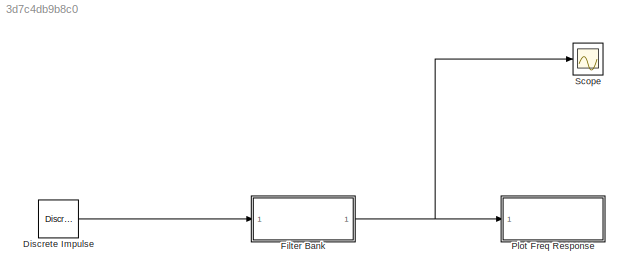
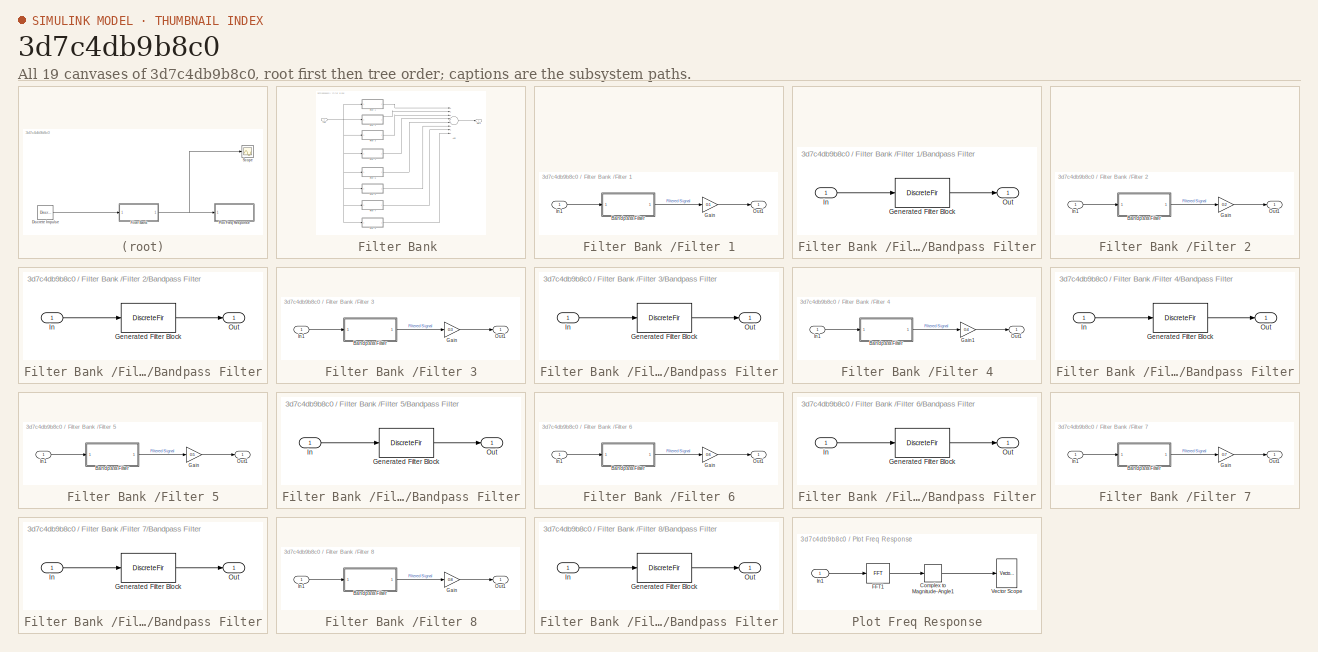
[diagram: thumbnail index - all 19 canvases of the model, root first then tree order]
MODEL slx_3d7c4db9b8c0
KIND model
CONFIG AbsTol = auto
CONFIG EnableMultiTasking = off
CONFIG FixedStep = auto
CONFIG MaxStep = auto
CONFIG MinStep = auto
CONFIG RelTol = 1e-3
CONFIG SampleTimeConstraint = Unconstrained
CONFIG Solver = VariableStepAuto
CONFIG SolverName = VariableStepAuto
CONFIG StartTime = 0.0
CONFIG StopTime = 0.1
BLOCK [Reference] Discrete Impulse  REF=dspsrcs4/Discrete 
Impulse
  Ports = [0, 1]
  SourceBlock = dspsrcs4/Discrete \nImpulse
  SourceProductBaseCode = DS
  SourceProductName = DSP System Toolbox
  SourceType = Discrete Impulse
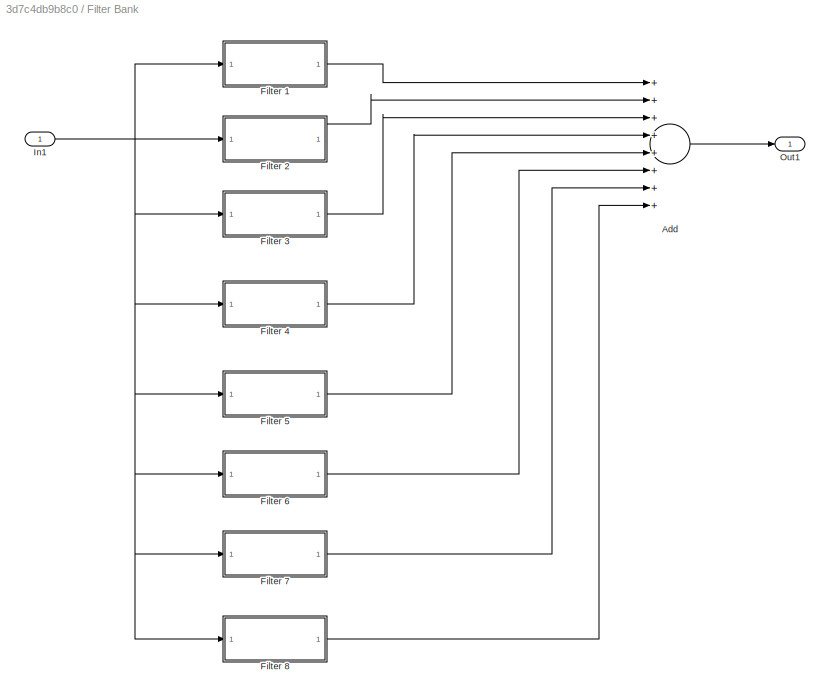
BLOCK [SubSystem] Filter Bank 
  Ports = [1, 1]
  RequestExecContextInheritance = off
BLOCK [Sum] Filter Bank /Add
  InputSameDT = off
  Inputs = ++++++++
  OutDataTypeStr = Inherit: Inherit via internal rule
  Ports = [8, 1]
  SaturateOnIntegerOverflow = off
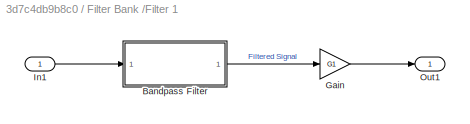
BLOCK [SubSystem] Filter Bank /Filter 1
  Ports = [1, 1]
  RequestExecContextInheritance = off
BLOCK [SubSystem] Filter Bank /Filter 1/Bandpass Filter
  CopyFcn = fdesignblkfcn(gcbh, {'CopyFcn'});
  DialogController = fdesignblkfcn
  InitFcn = fdesignblkfcn(gcbh, {'InitFcn'});
  Ports = [1, 1]
  RequestExecContextInheritance = off
  UserDataPersistent = on
BLOCK [DiscreteFir] Filter Bank /Filter 1/Bandpass Filter/Generated Filter Block
  Coefficients = [-0.00766321048125649575 -0.000180280651799153227 -0.000182785610599459888 -0.000184443947717255431 -0.000186875509306509973 -0.000188447846206871888 -0.000190806976946802253 -0.000192297232951844953 -0.000194601991788270897 -0.00019601436629961916 -0.000198275924662991339 -0.000199627261288770776 -0.000201883607460546632 -0.000203184800043465665 -0.000205446856650040425 -0.00020671435309735123 -0...<+32182ch>
  InputPortMap = u0
  InputProcessing = Columns as channels (frame based)
  OutputPortMap = o0
  Ports = [1, 1]
  Tag = BlockMethodSubSystem
BLOCK [Inport] Filter Bank /Filter 1/Bandpass Filter/In
  IconDisplay = Port number
BLOCK [Outport] Filter Bank /Filter 1/Bandpass Filter/Out
  IconDisplay = Port number
BLOCK [Gain] Filter Bank /Filter 1/Gain
  Gain = G1
  OutDataTypeStr = Inherit: Inherit via internal rule
  ParamDataTypeStr = Inherit: Inherit via internal rule
  SaturateOnIntegerOverflow = off
BLOCK [Inport] Filter Bank /Filter 1/In1
  IconDisplay = Port number
BLOCK [Outport] Filter Bank /Filter 1/Out1
  IconDisplay = Port number
BLOCK [SubSystem] Filter Bank /Filter 2
  Ports = [1, 1]
  RequestExecContextInheritance = off
BLOCK [SubSystem] Filter Bank /Filter 2/Bandpass Filter
  CopyFcn = fdesignblkfcn(gcbh, {'CopyFcn'});
  DialogController = fdesignblkfcn
  InitFcn = fdesignblkfcn(gcbh, {'InitFcn'});
  Ports = [1, 1]
  RequestExecContextInheritance = off
  UserDataPersistent = on
BLOCK [DiscreteFir] Filter Bank /Filter 2/Bandpass Filter/Generated Filter Block
  Coefficients = [-0.00683808473801020538 0.000453146012099650791 0.000439193334597743983 0.000425688735826898403 0.000413372222263871545 0.00040142288334680062 0.00039058929220634847 0.00038004506436549782 0.000370562120820603529 0.000361285945627898774 0.000353023210082561154 0.000344891623023386355 0.000337733977270703381 0.000330627325545598729 0.000324469668998443855 0.00031828100727470792 0.00031302645003936...<+45100ch>
  InputPortMap = u0
  InputProcessing = Columns as channels (frame based)
  OutputPortMap = o0
  Ports = [1, 1]
  Tag = BlockMethodSubSystem
BLOCK [Inport] Filter Bank /Filter 2/Bandpass Filter/In
  IconDisplay = Port number
BLOCK [Outport] Filter Bank /Filter 2/Bandpass Filter/Out
  IconDisplay = Port number
BLOCK [Gain] Filter Bank /Filter 2/Gain
  Gain = G2
  OutDataTypeStr = Inherit: Inherit via internal rule
  ParamDataTypeStr = Inherit: Inherit via internal rule
  SaturateOnIntegerOverflow = off
BLOCK [Inport] Filter Bank /Filter 2/In1
  IconDisplay = Port number
BLOCK [Outport] Filter Bank /Filter 2/Out1
  IconDisplay = Port number
BLOCK [SubSystem] Filter Bank /Filter 3
  Ports = [1, 1]
  RequestExecContextInheritance = off
BLOCK [SubSystem] Filter Bank /Filter 3/Bandpass Filter
  CopyFcn = fdesignblkfcn(gcbh, {'CopyFcn'});
  DialogController = fdesignblkfcn
  InitFcn = fdesignblkfcn(gcbh, {'InitFcn'});
  Ports = [1, 1]
  RequestExecContextInheritance = off
  UserDataPersistent = on
BLOCK [DiscreteFir] Filter Bank /Filter 3/Bandpass Filter/Generated Filter Block
  Coefficients = [0.000737724855567226264 -7.12621892387676527e-06 -7.10562199524401881e-06 -7.16452421808979412e-06 -7.19265580841319323e-06 -7.29714819573407221e-06 -7.3647135625338432e-06 -7.50199069266997175e-06 -7.59245959456994677e-06 -7.74526175817579297e-06 -7.83946792756576156e-06 -7.98691821420385704e-06 -8.06050340438970738e-06 -8.17689272316811357e-06 -8.20211017609812566e-06 -8.25959963603597479e-06 -...<+31187ch>
  InputPortMap = u0
  InputProcessing = Columns as channels (frame based)
  OutputPortMap = o0
  Ports = [1, 1]
  Tag = BlockMethodSubSystem
BLOCK [Inport] Filter Bank /Filter 3/Bandpass Filter/In
  IconDisplay = Port number
BLOCK [Outport] Filter Bank /Filter 3/Bandpass Filter/Out
  IconDisplay = Port number
BLOCK [Gain] Filter Bank /Filter 3/Gain
  Gain = G3
  OutDataTypeStr = Inherit: Inherit via internal rule
  ParamDataTypeStr = Inherit: Inherit via internal rule
  SaturateOnIntegerOverflow = off
BLOCK [Inport] Filter Bank /Filter 3/In1
  IconDisplay = Port number
BLOCK [Outport] Filter Bank /Filter 3/Out1
  IconDisplay = Port number
BLOCK [SubSystem] Filter Bank /Filter 4
  Ports = [1, 1]
  RequestExecContextInheritance = off
BLOCK [SubSystem] Filter Bank /Filter 4/Bandpass Filter
  CopyFcn = fdesignblkfcn(gcbh, {'CopyFcn'});
  DialogController = fdesignblkfcn
  InitFcn = fdesignblkfcn(gcbh, {'InitFcn'});
  Ports = [1, 1]
  RequestExecContextInheritance = off
  UserDataPersistent = on
BLOCK [DiscreteFir] Filter Bank /Filter 4/Bandpass Filter/Generated Filter Block
  Coefficients = [0.000769307225021903995 1.39462560566843514e-05 2.24699972520970952e-05 3.64068500121139758e-05 5.53086331206828399e-05 7.86808190633413737e-05 0.000105795968184624811 0.000135942771305882452 0.000168227486094584141 0.00020182536912098138 0.000235765740656352523 0.000269201946079343718 0.000301149008726167588 0.000330808493940412804 0.00035720820806332018 0.000379666498310512069 0.000398969278108...<+8919ch>
  InputPortMap = u0
  InputProcessing = Columns as channels (frame based)
  OutputPortMap = o0
  Ports = [1, 1]
  Tag = BlockMethodSubSystem
BLOCK [Inport] Filter Bank /Filter 4/Bandpass Filter/In
  IconDisplay = Port number
BLOCK [Outport] Filter Bank /Filter 4/Bandpass Filter/Out
  IconDisplay = Port number
BLOCK [Gain] Filter Bank /Filter 4/Gain1
  Gain = G4
  OutDataTypeStr = Inherit: Inherit via internal rule
  ParamDataTypeStr = Inherit: Inherit via internal rule
  SaturateOnIntegerOverflow = off
BLOCK [Inport] Filter Bank /Filter 4/In1
  IconDisplay = Port number
BLOCK [Outport] Filter Bank /Filter 4/Out1
  IconDisplay = Port number
BLOCK [SubSystem] Filter Bank /Filter 5
  Ports = [1, 1]
  RequestExecContextInheritance = off
BLOCK [SubSystem] Filter Bank /Filter 5/Bandpass Filter
  CopyFcn = fdesignblkfcn(gcbh, {'CopyFcn'});
  DialogController = fdesignblkfcn
  InitFcn = fdesignblkfcn(gcbh, {'InitFcn'});
  Ports = [1, 1]
  RequestExecContextInheritance = off
  UserDataPersistent = on
BLOCK [DiscreteFir] Filter Bank /Filter 5/Bandpass Filter/Generated Filter Block
  Coefficients = [0.000627194137713606983 0.000336773289343153396 0.000408165808565076214 0.000474031977476139013 0.000529332791824150932 0.00056935471293881009 0.000589453675706615643 0.000586070682049277792 0.000556319570000433678 0.000498912510109233076 0.000413697229372969003 0.00030250515074914928 0.000168601543193099842 1.73737823807410018e-05 -0.000144717188991615235 -0.000309671934913568353 -0.000469446899...<+5099ch>
  InputPortMap = u0
  InputProcessing = Columns as channels (frame based)
  OutputPortMap = o0
  Ports = [1, 1]
  Tag = BlockMethodSubSystem
BLOCK [Inport] Filter Bank /Filter 5/Bandpass Filter/In
  IconDisplay = Port number
BLOCK [Outport] Filter Bank /Filter 5/Bandpass Filter/Out
  IconDisplay = Port number
BLOCK [Gain] Filter Bank /Filter 5/Gain
  Gain = G5
  OutDataTypeStr = Inherit: Inherit via internal rule
  ParamDataTypeStr = Inherit: Inherit via internal rule
  SaturateOnIntegerOverflow = off
BLOCK [Inport] Filter Bank /Filter 5/In1
  IconDisplay = Port number
BLOCK [Outport] Filter Bank /Filter 5/Out1
  IconDisplay = Port number
BLOCK [SubSystem] Filter Bank /Filter 6
  Ports = [1, 1]
  RequestExecContextInheritance = off
BLOCK [SubSystem] Filter Bank /Filter 6/Bandpass Filter
  CopyFcn = fdesignblkfcn(gcbh, {'CopyFcn'});
  DialogController = fdesignblkfcn
  InitFcn = fdesignblkfcn(gcbh, {'InitFcn'});
  Ports = [1, 1]
  RequestExecContextInheritance = off
  UserDataPersistent = on
BLOCK [DiscreteFir] Filter Bank /Filter 6/Bandpass Filter/Generated Filter Block
  Coefficients = [0.000758106461061279686 0.000627954496571694475 0.00074989911857348073 0.000761114809614927418 0.00061645537017629968 0.00029055864761732853 -0.000212297435837907503 -0.000851439752729806387 -0.0015505444146164738 -0.00220433141713660078 -0.00269345811208385666 -0.0029036831518041142 -0.00274902169591738832 -0.00219151013165677123 -0.00125531624779321089 -2.94406917582938247e-05 0.001339394509995...<+4533ch>
  InputPortMap = u0
  InputProcessing = Columns as channels (frame based)
  OutputPortMap = o0
  Ports = [1, 1]
  Tag = BlockMethodSubSystem
BLOCK [Inport] Filter Bank /Filter 6/Bandpass Filter/In
  IconDisplay = Port number
BLOCK [Outport] Filter Bank /Filter 6/Bandpass Filter/Out
  IconDisplay = Port number
BLOCK [Gain] Filter Bank /Filter 6/Gain
  Gain = G6
  OutDataTypeStr = Inherit: Inherit via internal rule
  ParamDataTypeStr = Inherit: Inherit via internal rule
  SaturateOnIntegerOverflow = off
BLOCK [Inport] Filter Bank /Filter 6/In1
  IconDisplay = Port number
BLOCK [Outport] Filter Bank /Filter 6/Out1
  IconDisplay = Port number
BLOCK [SubSystem] Filter Bank /Filter 7
  Ports = [1, 1]
  RequestExecContextInheritance = off
BLOCK [SubSystem] Filter Bank /Filter 7/Bandpass Filter
  CopyFcn = fdesignblkfcn(gcbh, {'CopyFcn'});
  DialogController = fdesignblkfcn
  InitFcn = fdesignblkfcn(gcbh, {'InitFcn'});
  Ports = [1, 1]
  RequestExecContextInheritance = off
  UserDataPersistent = on
BLOCK [DiscreteFir] Filter Bank /Filter 7/Bandpass Filter/Generated Filter Block
  Coefficients = [2.13414128321384538e-05 -0.000759798809592844267 -0.000538552863608695817 -0.000335928687084771009 5.24523765460956263e-05 0.000389021891316683683 0.000441670017314044585 0.000201002804152968889 -5.66482041104310956e-05 4.82540718653125586e-05 0.000661195157130662703 0.00145290535972860606 0.00171570551834987831 0.000821156208601171353 -0.00122706016173827 -0.0035592211861228476 -0.00479171154730...<+4578ch>
  InputPortMap = u0
  InputProcessing = Columns as channels (frame based)
  OutputPortMap = o0
  Ports = [1, 1]
  Tag = BlockMethodSubSystem
BLOCK [Inport] Filter Bank /Filter 7/Bandpass Filter/In
  IconDisplay = Port number
BLOCK [Outport] Filter Bank /Filter 7/Bandpass Filter/Out
  IconDisplay = Port number
BLOCK [Gain] Filter Bank /Filter 7/Gain
  Gain = G7
  OutDataTypeStr = Inherit: Inherit via internal rule
  ParamDataTypeStr = Inherit: Inherit via internal rule
  SaturateOnIntegerOverflow = off
BLOCK [Inport] Filter Bank /Filter 7/In1
  IconDisplay = Port number
BLOCK [Outport] Filter Bank /Filter 7/Out1
  IconDisplay = Port number
BLOCK [SubSystem] Filter Bank /Filter 8
  Ports = [1, 1]
  RequestExecContextInheritance = off
BLOCK [SubSystem] Filter Bank /Filter 8/Bandpass Filter
  CopyFcn = fdesignblkfcn(gcbh, {'CopyFcn'});
  DialogController = fdesignblkfcn
  InitFcn = fdesignblkfcn(gcbh, {'InitFcn'});
  Ports = [1, 1]
  RequestExecContextInheritance = off
  UserDataPersistent = on
BLOCK [DiscreteFir] Filter Bank /Filter 8/Bandpass Filter/Generated Filter Block
  Coefficients = [0.00205178042206715858 -0.00532547961820776551 -0.00397094889859597993 0.012195358031550068 0.00222122035666617737 -0.0101675311674989284 -0.00207765743935300722 0.00171322319666584186 0.00316096156875898511 0.00215427953653152954 0.00151587168486719466 -0.00308404045992475076 -0.00384214539002191834 0.0018851744885105509 -0.00253203483559884387 0.00437336607375676898 0.00294255534969869613 -0.00...<+4314ch>
  InputPortMap = u0
  InputProcessing = Columns as channels (frame based)
  OutputPortMap = o0
  Ports = [1, 1]
  Tag = BlockMethodSubSystem
BLOCK [Inport] Filter Bank /Filter 8/Bandpass Filter/In
  IconDisplay = Port number
BLOCK [Outport] Filter Bank /Filter 8/Bandpass Filter/Out
  IconDisplay = Port number
BLOCK [Gain] Filter Bank /Filter 8/Gain
  Gain = G8
  OutDataTypeStr = Inherit: Inherit via internal rule
  ParamDataTypeStr = Inherit: Inherit via internal rule
  SaturateOnIntegerOverflow = off
BLOCK [Inport] Filter Bank /Filter 8/In1
  IconDisplay = Port number
BLOCK [Outport] Filter Bank /Filter 8/Out1
  IconDisplay = Port number
BLOCK [Inport] Filter Bank /In1
  IconDisplay = Port number
BLOCK [Outport] Filter Bank /Out1
  IconDisplay = Port number
BLOCK [SubSystem] Plot Freq Response
  Ports = [1]
  RequestExecContextInheritance = off
BLOCK [ComplexToMagnitudeAngle] Plot Freq Response/Complex to Magnitude-Angle1
  Output = Magnitude
  Ports = [1, 1]
BLOCK [Reference] Plot Freq Response/FFT1  REF=dspxfrm3/FFT
  Ports = [1, 1]
  SourceBlock = dspxfrm3/FFT
  SourceProductBaseCode = DS
  SourceProductName = DSP System Toolbox
  SourceType = FFT
BLOCK [Inport] Plot Freq Response/In1
  IconDisplay = Port number
BLOCK [Reference] Plot Freq Response/Vector Scope  REF=dspobslib/Vector
Scope
  Ports = [1]
  SourceBlock = dspobslib/Vector\nScope
  SourceProductBaseCode = DS
  SourceProductName = DSP System Toolbox
  SourceType = Vector Scope
BLOCK [Scope] Scope
  Floating = off
  NumInputPorts = 1
  Ports = [1]
  ScopeSpecificationString = Simulink.scopes.TimeScopeBlockCfg('CurrentConfiguration', extmgr.ConfigurationSet(extmgr.Configuration('Core','General UI',true),extmgr.Configuration('Core','Source UI',true),extmgr.Configuration('Sources','WiredSimulink',true),extmgr.Configuration('Visuals','Time Domain',true,'SerializedDisplays',{struct('MinYLimReal','-9.76286','MaxYLimReal','13.15787','YLabelReal','','MinYLimMag','0.00000','Max...<+3666ch>
LINE Discrete Impulse:1 -> Filter Bank :1
LINE Filter Bank /Add:1 -> Filter Bank /Out1:1
LINE Filter Bank /Filter 1/Bandpass Filter:1 -> Filter Bank /Filter 1/Gain:1
LINE Filter Bank /Filter 1/Gain:1 -> Filter Bank /Filter 1/Out1:1
LINE Filter Bank /Filter 1/In1:1 -> Filter Bank /Filter 1/Bandpass Filter:1
LINE Filter Bank /Filter 1:1 -> Filter Bank /Add:1
LINE Filter Bank /Filter 2/Bandpass Filter:1 -> Filter Bank /Filter 2/Gain:1
LINE Filter Bank /Filter 2/Gain:1 -> Filter Bank /Filter 2/Out1:1
LINE Filter Bank /Filter 2/In1:1 -> Filter Bank /Filter 2/Bandpass Filter:1
LINE Filter Bank /Filter 2:1 -> Filter Bank /Add:2
LINE Filter Bank /Filter 3/Bandpass Filter:1 -> Filter Bank /Filter 3/Gain:1
LINE Filter Bank /Filter 3/Gain:1 -> Filter Bank /Filter 3/Out1:1
LINE Filter Bank /Filter 3/In1:1 -> Filter Bank /Filter 3/Bandpass Filter:1
LINE Filter Bank /Filter 3:1 -> Filter Bank /Add:3
LINE Filter Bank /Filter 4/Bandpass Filter:1 -> Filter Bank /Filter 4/Gain1:1
LINE Filter Bank /Filter 4/Gain1:1 -> Filter Bank /Filter 4/Out1:1
LINE Filter Bank /Filter 4/In1:1 -> Filter Bank /Filter 4/Bandpass Filter:1
LINE Filter Bank /Filter 4:1 -> Filter Bank /Add:4
LINE Filter Bank /Filter 5/Bandpass Filter:1 -> Filter Bank /Filter 5/Gain:1
LINE Filter Bank /Filter 5/Gain:1 -> Filter Bank /Filter 5/Out1:1
LINE Filter Bank /Filter 5/In1:1 -> Filter Bank /Filter 5/Bandpass Filter:1
LINE Filter Bank /Filter 5:1 -> Filter Bank /Add:5
LINE Filter Bank /Filter 6/Bandpass Filter:1 -> Filter Bank /Filter 6/Gain:1
LINE Filter Bank /Filter 6/Gain:1 -> Filter Bank /Filter 6/Out1:1
LINE Filter Bank /Filter 6/In1:1 -> Filter Bank /Filter 6/Bandpass Filter:1
LINE Filter Bank /Filter 6:1 -> Filter Bank /Add:6
LINE Filter Bank /Filter 7/Bandpass Filter:1 -> Filter Bank /Filter 7/Gain:1
LINE Filter Bank /Filter 7/Gain:1 -> Filter Bank /Filter 7/Out1:1
LINE Filter Bank /Filter 7/In1:1 -> Filter Bank /Filter 7/Bandpass Filter:1
LINE Filter Bank /Filter 7:1 -> Filter Bank /Add:7
LINE Filter Bank /Filter 8/Bandpass Filter:1 -> Filter Bank /Filter 8/Gain:1
LINE Filter Bank /Filter 8/Gain:1 -> Filter Bank /Filter 8/Out1:1
LINE Filter Bank /Filter 8/In1:1 -> Filter Bank /Filter 8/Bandpass Filter:1
LINE Filter Bank /Filter 8:1 -> Filter Bank /Add:8
NET Filter Bank /In1:1 -> Filter Bank /Filter 1:1, Filter Bank /Filter 2:1, Filter Bank /Filter 3:1, Filter Bank /Filter 4:1, Filter Bank /Filter 5:1, Filter Bank /Filter 6:1, Filter Bank /Filter 7:1, Filter Bank /Filter 8:1
NET Filter Bank :1 -> Plot Freq Response:1, Scope:1
LINE Plot Freq Response/Complex to Magnitude-Angle1:1 -> Plot Freq Response/Vector Scope:1
LINE Plot Freq Response/FFT1:1 -> Plot Freq Response/Complex to Magnitude-Angle1:1
LINE Plot Freq Response/In1:1 -> Plot Freq Response/FFT1:1
note: NET lines group one-source signal fan-out (src -> all destinations, sorted); 1:1 wires keep LINE
